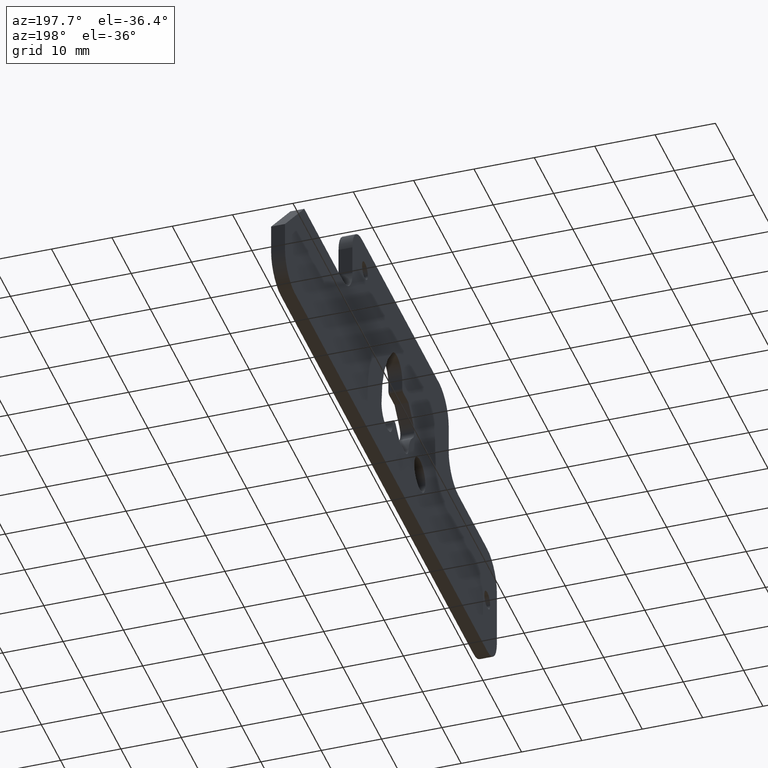
[diagram: clean part render]
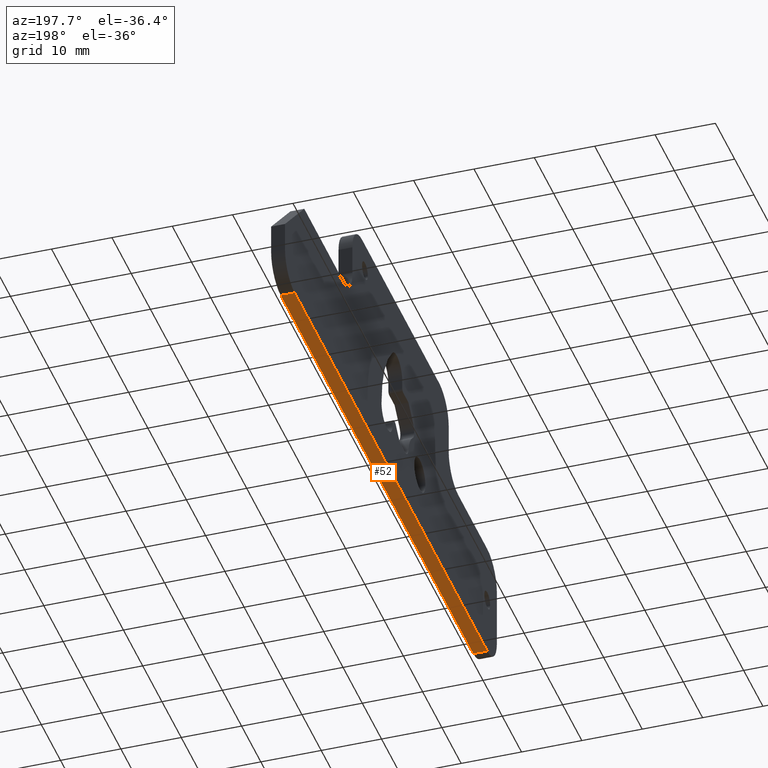
[diagram: same view with one face highlighted and labeled with its STEP entity id]
A machine part, auxiliary view. The second image highlights one B-rep face of the part: STEP entity #52.
In plain terms, the highlighted planar face has unit normal (0, 0, 1).
Its self-contained STEP definition (entity closure, byte-faithful):
#52=ADVANCED_FACE('',(#199),#198,.F.);
#198=PLANE('',#529);
#199=FACE_OUTER_BOUND('',#530,.T.);
#526=CARTESIAN_POINT('',(-2.53000000000E+00,-4.50000000000E+01,-1.00000000000E+01));
#527=DIRECTION('',(0.00000000000E+00,0.00000000000E+00,1.00000000000E+00));
#528=DIRECTION('',(1.00000000000E+00,0.00000000000E+00,-0.00000000000E+00));
#529=AXIS2_PLACEMENT_3D('',#526,#527,#528);
#530=EDGE_LOOP('',(#712,#713,#714,#715));
#712=ORIENTED_EDGE('',*,*,#923,.T.);
#713=ORIENTED_EDGE('',*,*,#924,.F.);
#714=ORIENTED_EDGE('',*,*,#925,.F.);
#715=ORIENTED_EDGE('',*,*,#921,.T.);
#921=EDGE_CURVE('',#1232,#1225,#1233,.T.);
#923=EDGE_CURVE('',#1225,#1245,#1246,.T.);
#924=EDGE_CURVE('',#1252,#1245,#1253,.T.);
#925=EDGE_CURVE('',#1232,#1252,#1259,.T.);
#1225=VERTEX_POINT('',#1872);
#1232=VERTEX_POINT('',#1877);
#1233=LINE('',#1878,#1879);
#1245=VERTEX_POINT('',#1885);
#1246=LINE('',#1886,#1887);
#1252=VERTEX_POINT('',#1889);
#1253=LINE('',#1890,#1891);
#1259=LINE('',#1893,#1894);
#1872=CARTESIAN_POINT('',(0.00000000000E+00,6.50000000000E+01,-1.00000000000E+01));
#1877=CARTESIAN_POINT('',(-2.30000000000E+00,6.50000000000E+01,-1.00000000000E+01));
#1878=CARTESIAN_POINT('',(-2.30000000000E+00,6.50000000000E+01,-1.00000000000E+01));
#1879=VECTOR('',#1880,2.30000000000E+00);
#1880=DIRECTION('',(1.00000000000E+00,0.00000000000E+00,0.00000000000E+00));
#1885=CARTESIAN_POINT('',(0.00000000000E+00,-3.50000000000E+01,-1.00000000000E+01));
#1886=CARTESIAN_POINT('',(0.00000000000E+00,6.50000000000E+01,-1.00000000000E+01));
#1887=VECTOR('',#1888,1.00000000000E+02);
#1888=DIRECTION('',(0.00000000000E+00,-1.00000000000E+00,0.00000000000E+00));
#1889=CARTESIAN_POINT('',(-2.30000000000E+00,-3.50000000000E+01,-1.00000000000E+01));
#1890=CARTESIAN_POINT('',(-2.30000000000E+00,-3.50000000000E+01,-1.00000000000E+01));
#1891=VECTOR('',#1892,2.30000000000E+00);
#1892=DIRECTION('',(1.00000000000E+00,0.00000000000E+00,0.00000000000E+00));
#1893=CARTESIAN_POINT('',(-2.30000000000E+00,6.50000000000E+01,-1.00000000000E+01));
#1894=VECTOR('',#1895,1.00000000000E+02);
#1895=DIRECTION('',(0.00000000000E+00,-1.00000000000E+00,0.00000000000E+00));